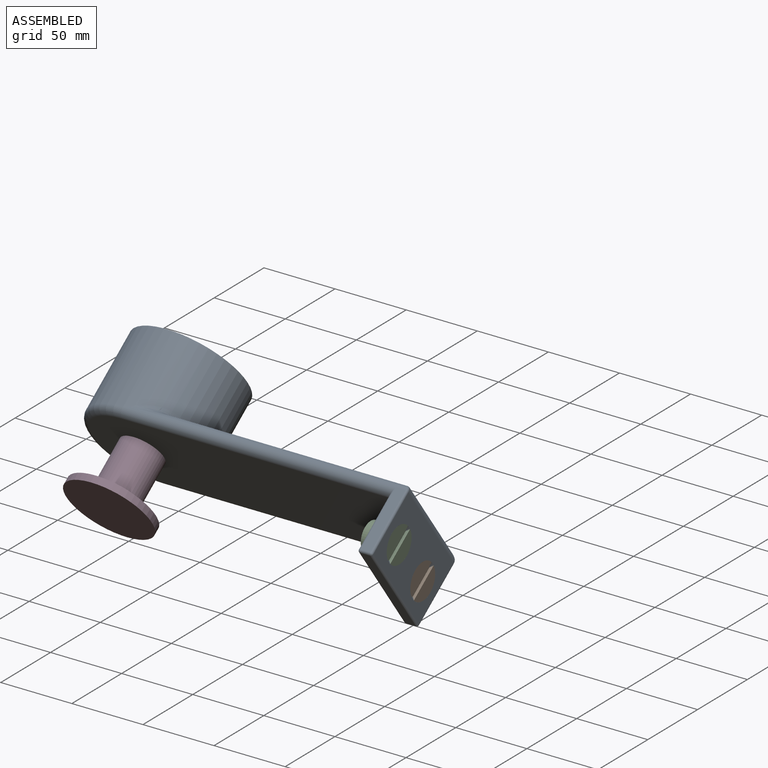
[diagram: assembled view]
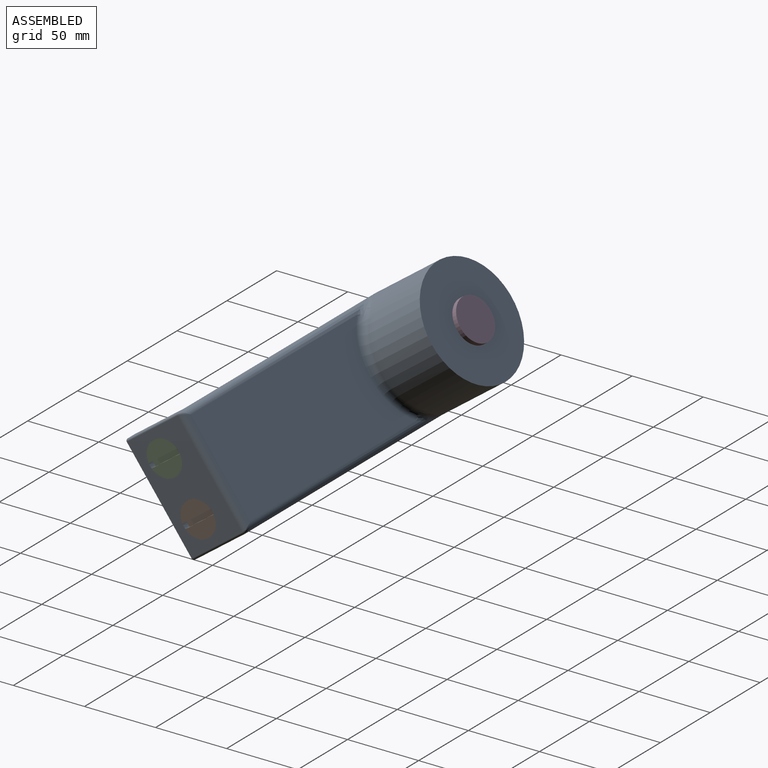
[diagram: assembled view, second angle]
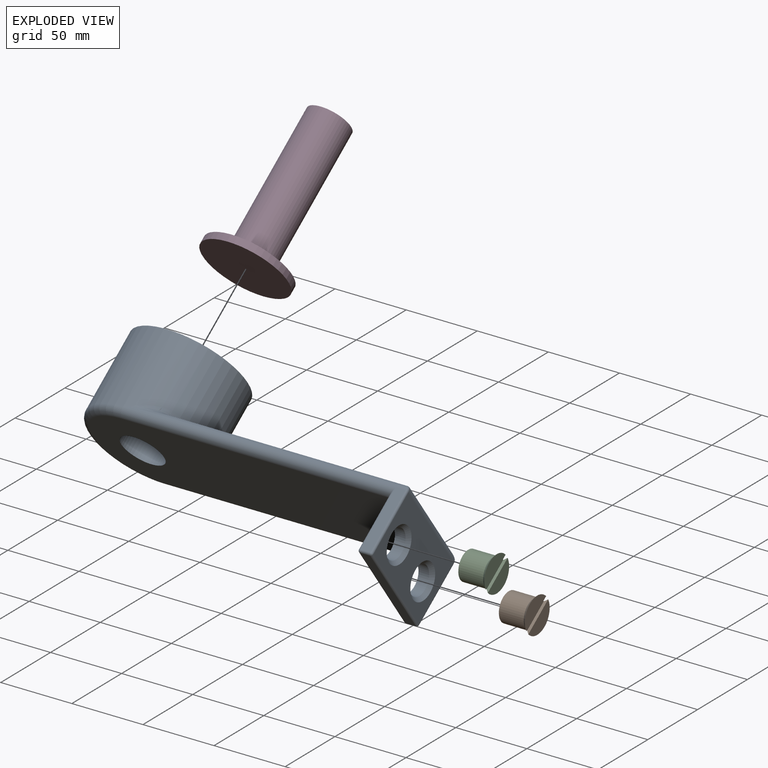
[diagram: exploded view]
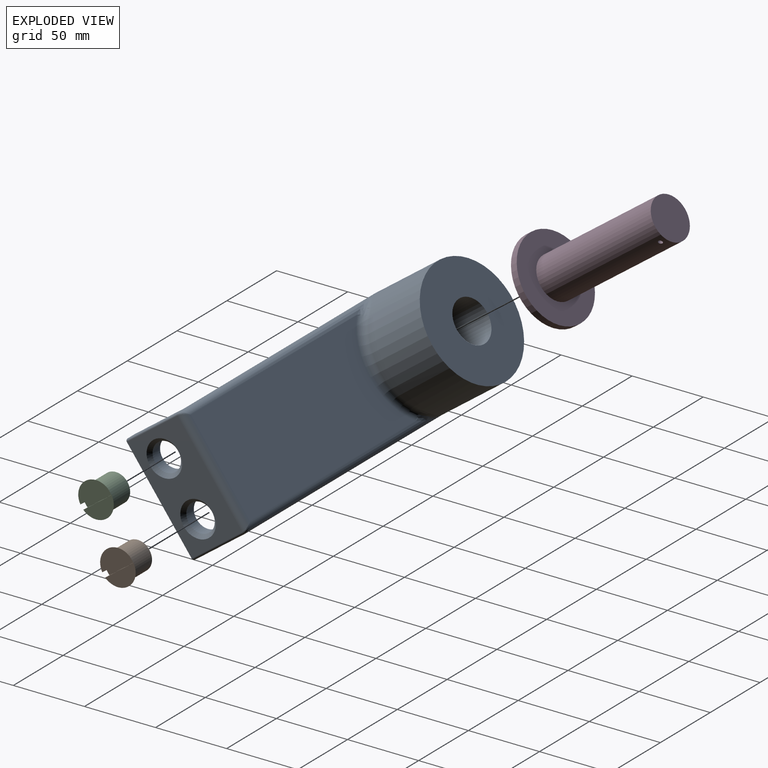
[diagram: exploded view, second angle]
ASSEMBLY  parts=4 mates=3
PART A: 35 faces, bbox 243.3x86.6x100 mm
  f0: plane 225x70mm, normal (0,0,-1), area 14517.4mm2, adj f5,f7,f16,f17,f18
  f1: plane 43.5x7mm, normal (0,1,0), area 304.5mm2, adj f16,f22,f28,f31
  f2: cylinder r=40mm len=80mm, axis (0,0,-1), area 12776mm2, adj f11,f12,f13,f14,f18
  f3: plane 43.5x7mm, normal (0,-1,0), area 304.5mm2, adj f17,f19,f24,f25
  f4: plane 77x43.5mm, normal (1,0,0), area 2367.8mm2, adj f15,f25,f29,f31,f33,f34
  f5: cylinder r=15mm len=60mm, axis (0,0,-1), area 5654.9mm2, adj f0,f11
  f6: plane 166.72x70mm, normal (0,0,1), area 10855.5mm2, adj f12,f15,f16,f17
  f7: plane 77x39.93mm, normal (-1,0,0), area 2339.3mm2, adj f0,f9,f10,f16,f17,f19,f22,f23
  f8: plane 77x7mm, normal (0,0,-1), area 539mm2, adj f23,f24,f28,f29
  f9: cylinder r=10mm len=20mm, axis (1,0,0), area 471.2mm2, adj f7,f33
  f10: cylinder r=10mm len=20mm, axis (1,0,0), area 471.2mm2, adj f7,f34
  f11: plane 80x80mm, normal (0,0,1), area 4319.7mm2, adj f2,f5
  f12: torus R=45mm, axis (0,0,1), area 585.3mm2, adj f2,f6,f13,f14
  f13: bspline ~28.9x10mm, area 109mm2, adj f2,f12,f16
  f14: bspline ~28.9x10mm, area 109mm2, adj f2,f12,f17
  f15: cylinder r=5mm len=77mm, axis (0,-1,0), area 584.8mm2, adj f4,f6,f21,f32
  f16: cylinder r=5mm len=198.5mm, axis (1,0,0), area 2923mm2, adj f0,f1,f6,f7,f13,f18,f22,f32
  f17: cylinder r=5mm len=198.5mm, axis (-1,0,0), area 2923mm2, adj f0,f3,f6,f7,f14,f18,f19,f21
  f18: torus R=35mm, axis (0,0,1), area 942.1mm2, adj f0,f2,f16,f17
  f19: cylinder r=1.5mm len=43.5mm, axis (0,0,1), area 97.9mm2, adj f3,f7,f17,f20
  f20: sphere r=1.5mm, area 3.5mm2, adj f19,f23,f24
  f21: bspline ~5.84x5mm, area 12.6mm2, adj f15,f17,f25
  f22: cylinder r=1.5mm len=43.5mm, axis (0,0,-1), area 97.9mm2, adj f1,f7,f16,f26
  f23: cylinder r=1.5mm len=77mm, axis (0,-1,0), area 181.4mm2, adj f7,f8,f20,f26
  f24: cylinder r=1.5mm len=7mm, axis (1,0,0), area 16.5mm2, adj f3,f8,f20,f27
  f25: cylinder r=1.5mm len=43.5mm, axis (0,0,-1), area 102.5mm2, adj f3,f4,f21,f27
  f26: sphere r=1.5mm, area 3.5mm2, adj f22,f23,f28
  f27: sphere r=1.5mm, area 3.5mm2, adj f24,f25,f29
  f28: cylinder r=1.5mm len=7mm, axis (-1,0,0), area 16.5mm2, adj f1,f8,f26,f30
  f29: cylinder r=1.5mm len=77mm, axis (0,1,0), area 181.4mm2, adj f4,f8,f27,f30
  f30: sphere r=1.5mm, area 3.5mm2, adj f28,f29,f31
  f31: cylinder r=1.5mm len=43.5mm, axis (0,0,1), area 102.5mm2, adj f1,f4,f30,f32
  f32: bspline ~5.84x5mm, area 12.6mm2, adj f15,f16,f31
  f33: cone r=10mm half-angle=45deg, axis (1,0,0), area 249.9mm2, adj f4,f9
  f34: cone r=10mm half-angle=45deg, axis (1,0,0), area 249.9mm2, adj f4,f10
PART B: 10 faces, bbox 25x25x21 mm
  f0: plane 24.75x10.75mm, normal (0,0,1), area 201.8mm2, adj f1,f7
  f1: cone r=12.5mm half-angle=45deg, axis (0,0,1), area 229.9mm2, adj f0,f2,f6,f7,f8,f9
  f2: plane 24.75x10.75mm, normal (0,0,1), area 201.8mm2, adj f1,f8
  f3: plane 16x16mm, normal (0,0,-1), area 201.1mm2, adj f4
  f4: cylinder r=8mm len=16mm, axis (0,0,1), area 50.3mm2, adj f3,f5
  f5: plane 20x20mm, normal (0,0,-1), area 113.1mm2, adj f4,f6
  f6: cylinder r=10mm len=20mm, axis (0,0,1), area 1099.6mm2, adj f1,f5
  f7: plane 24.78x2.03mm, normal (0,1,0), area 45.5mm2, adj f0,f1,f9
  f8: plane 24.78x2.03mm, normal (0,-1,0), area 45.5mm2, adj f1,f2,f9
  f9: plane 21x3.5mm, normal (0,0,1), area 73.2mm2, adj f1,f7,f8
PART C: same geometry as B
PART D: 6 faces, bbox 60x60x105 mm
  f0: plane 60x60mm, normal (0,0,-1), area 2827.4mm2, adj f1
  f1: cylinder r=30mm len=60mm, axis (0,0,-1), area 942.5mm2, adj f0,f2
  f2: plane 60x60mm, normal (0,0,1), area 2120.6mm2, adj f1,f3
  f3: cylinder r=15mm len=100mm, axis (0,0,-1), area 9410.6mm2, adj f2,f4,f5
  f4: plane 30x30mm, normal (0,0,1), area 706.9mm2, adj f3
  f5: cylinder r=1.5mm len=30mm, axis (1,0,0), area 282mm2, adj f3
PLACE A rot(axis=(-1,0,0),53.6deg) t=(109.29,0.63,17.64)mm fixed
PLACE B rot(axis=(-0.41,0.81,-0.41),101.7deg) t=(209.29,-3.61,-10.32)mm
PLACE C rot(axis=(-0.41,0.81,-0.41),101.7deg) t=(209.29,-27.34,21.88)mm
PLACE D rot(axis=(-0.15,-0.45,-0.88),146.5deg) t=(9.29,-28.96,-4.16)mm
MATE cylindrical D.f1 <-> A.f2  axis (0,-0.81,-0.59) through (9.29,-28.96,-4.16)mm
MATE fastened C.f1 <-> A.f34  axis (1,0,0) through (209.29,-27.34,21.88)mm
MATE fastened B.f1 <-> A.f33  axis (1,0,0) through (209.29,-3.61,-10.32)mm
